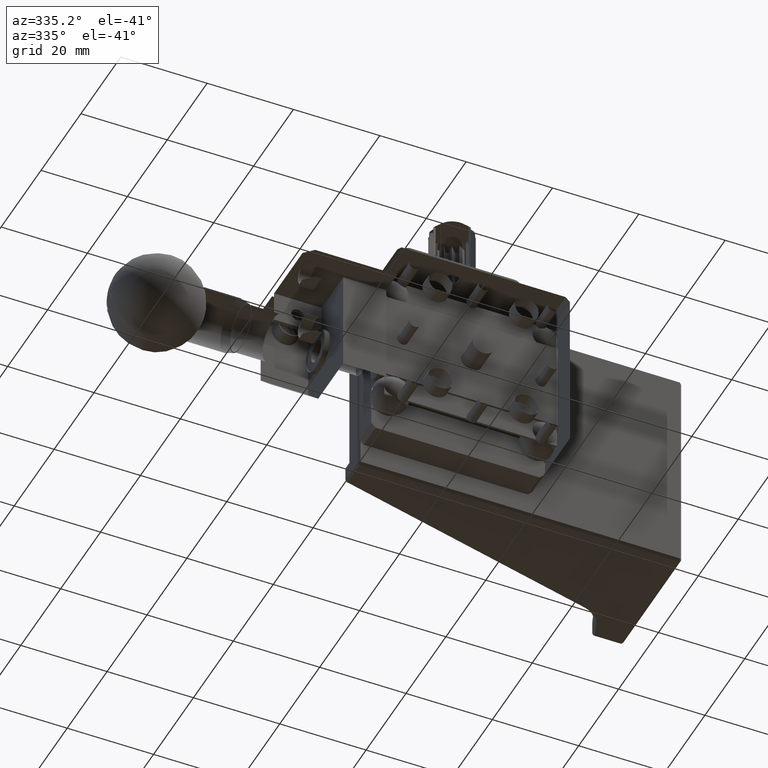
[diagram: clean part render]
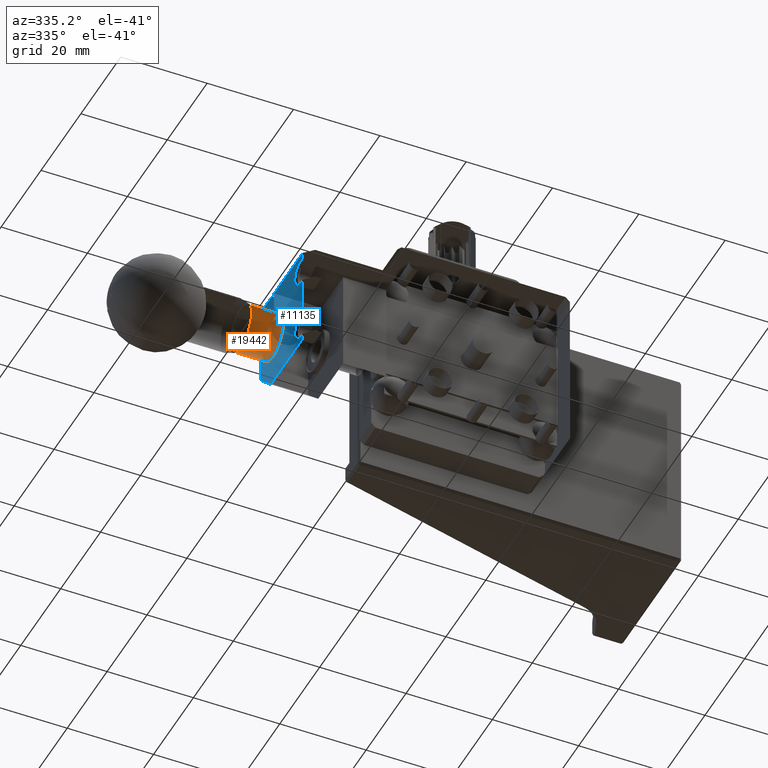
[diagram: same view with the hole feature highlighted: cylindrical wall and planar end face, labeled with their STEP entity ids]
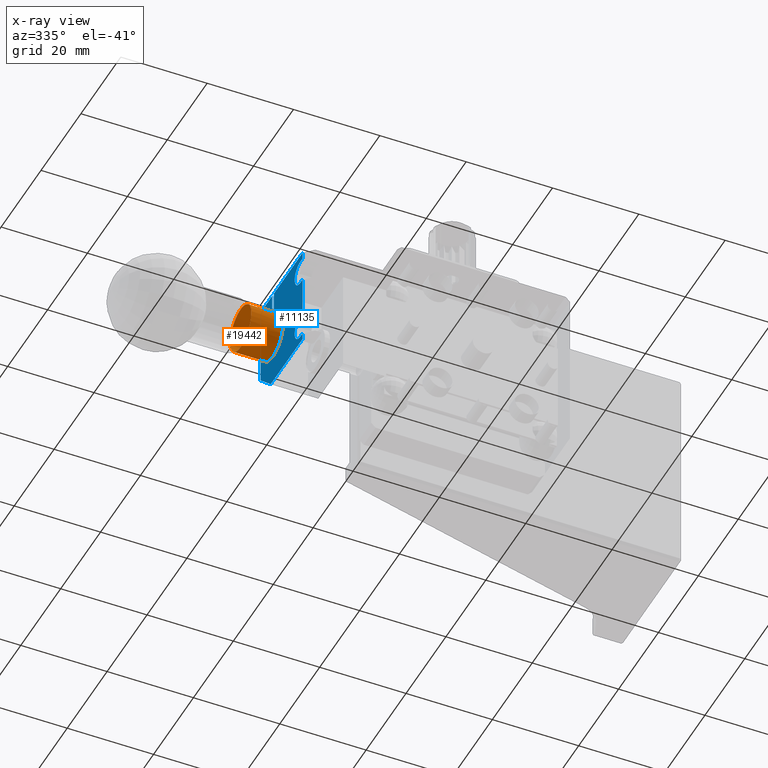
[diagram: x-ray of the same camera — body ghosted, the hole faces saturated]
A machine part, auxiliary view. The highlighted faces form one hole feature of diameter 10.5 mm: the cylindrical wall (entity #19442, orange) and its adjacent planar end face (entity #11135, blue) — they share a circular edge in the B-rep.
The next image is the same camera in x-ray (body ghosted, the hole faces saturated) — the bore reads through the body.
Wall:
#1465 = DIRECTION ( 'NONE',  ( -1.000000000000000000, 0.000000000000000000, -1.748160169567439944E-18 ) ) ;
#1973 = DIRECTION ( 'NONE',  ( -1.748160169567439944E-18, 0.000000000000000000, 1.000000000000000000 ) ) ;
#2182 = CYLINDRICAL_SURFACE ( 'NONE', #16732, 5.250000000000000000 ) ;
#5888 = DIRECTION ( 'NONE',  ( 0.000000000000000000, 0.000000000000000000, 1.000000000000000000 ) ) ;
#7212 = AXIS2_PLACEMENT_3D ( 'NONE', #24003, #1465, #1973 ) ;
#8514 = CARTESIAN_POINT ( 'NONE',  ( -7.500000000000000000, 16.80000000000000071, 5.250000000000000000 ) ) ;
#10477 = CARTESIAN_POINT ( 'NONE',  ( 0.000000000000000000, 16.80000000000000071, -3.852740219982900231E-17 ) ) ;
#10757 = ORIENTED_EDGE ( 'NONE', *, *, #22360, .T. ) ;
#13440 = VERTEX_POINT ( 'NONE', #38985 ) ;
#13813 = DIRECTION ( 'NONE',  ( 1.000000000000000000, -0.000000000000000000, 1.748160169567439944E-18 ) ) ;
#16732 = AXIS2_PLACEMENT_3D ( 'NONE', #32376, #47023, #5888 ) ;
#17485 = CIRCLE ( 'NONE', #21420, 5.250000000000000000 ) ;
#18898 = EDGE_LOOP ( 'NONE', ( #10757 ) ) ;
#19442 = ADVANCED_FACE ( 'NONE', ( #20284, #28673 ), #2182, .T. ) ;
#20284 = FACE_OUTER_BOUND ( 'NONE', #43620, .T. ) ;
#21420 = AXIS2_PLACEMENT_3D ( 'NONE', #10477, #29768, #37177 ) ;
#21787 = CARTESIAN_POINT ( 'NONE',  ( -4.568061607830639649E-18, 16.29999999999999716, 5.226136240091719287 ) ) ;
#22360 = EDGE_CURVE ( 'NONE', #24084, #24084, #41330, .T. ) ;
#24003 = CARTESIAN_POINT ( 'NONE',  ( 0.000000000000000000, 16.80000000000000071, -3.852740219982900231E-17 ) ) ;
#24084 = VERTEX_POINT ( 'NONE', #8514 ) ;
#28424 = EDGE_CURVE ( 'NONE', #39159, #13440, #17485, .T. ) ;
#28673 = FACE_OUTER_BOUND ( 'NONE', #18898, .T. ) ;
#29259 = ORIENTED_EDGE ( 'NONE', *, *, #39011, .T. ) ;
#29768 = DIRECTION ( 'NONE',  ( -1.000000000000000000, 0.000000000000000000, -1.748160169567439944E-18 ) ) ;
#30281 = AXIS2_PLACEMENT_3D ( 'NONE', #47723, #13813, #32825 ) ;
#32376 = CARTESIAN_POINT ( 'NONE',  ( -37.50000000000000000, 16.80000000000000071, -1.040834085586080066E-16 ) ) ;
#32825 = DIRECTION ( 'NONE',  ( 0.000000000000000000, 0.000000000000000000, 1.000000000000000000 ) ) ;
#37177 = DIRECTION ( 'NONE',  ( -1.748160169567439944E-18, 0.000000000000000000, 1.000000000000000000 ) ) ;
#38985 = CARTESIAN_POINT ( 'NONE',  ( -4.568061607830640419E-18, 17.30000000000000071, 5.226136240091719287 ) ) ;
#39011 = EDGE_CURVE ( 'NONE', #13440, #39159, #47575, .T. ) ;
#39159 = VERTEX_POINT ( 'NONE', #21787 ) ;
#41330 = CIRCLE ( 'NONE', #30281, 5.250000000000000000 ) ;
#43620 = EDGE_LOOP ( 'NONE', ( #29259, #44954 ) ) ;
#44954 = ORIENTED_EDGE ( 'NONE', *, *, #28424, .T. ) ;
#47023 = DIRECTION ( 'NONE',  ( -1.000000000000000000, 0.000000000000000000, -1.748160169567439944E-18 ) ) ;
#47575 = CIRCLE ( 'NONE', #7212, 5.250000000000000000 ) ;
#47723 = CARTESIAN_POINT ( 'NONE',  ( -7.500000000000000000, 16.80000000000000071, -5.163860347158480440E-17 ) ) ;
End face:
#371 = ORIENTED_EDGE ( 'NONE', *, *, #25726, .T. ) ;
#756 = CARTESIAN_POINT ( 'NONE',  ( 0.000000000000000000, 3.000000000000000000, 7.500000000000000000 ) ) ;
#1465 = DIRECTION ( 'NONE',  ( -1.000000000000000000, 0.000000000000000000, -1.748160169567439944E-18 ) ) ;
#1734 = CARTESIAN_POINT ( 'NONE',  ( 0.000000000000000000, 2.000000000000000000, -10.44999999999999929 ) ) ;
#1745 = ORIENTED_EDGE ( 'NONE', *, *, #34205, .F. ) ;
#1800 = EDGE_CURVE ( 'NONE', #34042, #16995, #46269, .T. ) ;
#1973 = DIRECTION ( 'NONE',  ( -1.748160169567439944E-18, 0.000000000000000000, 1.000000000000000000 ) ) ;
#2509 = LINE ( 'NONE', #43598, #10976 ) ;
#2514 = VECTOR ( 'NONE', #32441, 1000.000000000000000 ) ;
#2782 = CARTESIAN_POINT ( 'NONE',  ( 0.000000000000000000, 16.30000000000000071, 12.00000000000000000 ) ) ;
#3337 = VECTOR ( 'NONE', #23527, 999.9999999999998863 ) ;
#3441 = CARTESIAN_POINT ( 'NONE',  ( 0.000000000000000000, 3.000000000000000000, -4.549999999999999822 ) ) ;
#3640 = ORIENTED_EDGE ( 'NONE', *, *, #36541, .F. ) ;
#3826 = CARTESIAN_POINT ( 'NONE',  ( 0.000000000000000000, 17.30000000000000071, -9.469828350303079763E-16 ) ) ;
#4037 = LINE ( 'NONE', #37920, #16670 ) ;
#4455 = FACE_OUTER_BOUND ( 'NONE', #15978, .T. ) ;
#5244 = ORIENTED_EDGE ( 'NONE', *, *, #28809, .F. ) ;
#5480 = EDGE_CURVE ( 'NONE', #12854, #30931, #29712, .T. ) ;
#6245 = CARTESIAN_POINT ( 'NONE',  ( 0.000000000000000000, 3.000000000000000444, -10.45000000000000107 ) ) ;
#6564 = LINE ( 'NONE', #39988, #34592 ) ;
#7212 = AXIS2_PLACEMENT_3D ( 'NONE', #24003, #1465, #1973 ) ;
#7245 = CARTESIAN_POINT ( 'NONE',  ( 0.000000000000000000, 16.80000000000000071, -4.549999999999999822 ) ) ;
#8176 = CARTESIAN_POINT ( 'NONE',  ( 0.000000000000000000, 16.80000000000000071, -9.469828350303079763E-16 ) ) ;
#8423 = DIRECTION ( 'NONE',  ( 1.000000000000000000, 0.000000000000000000, 0.000000000000000000 ) ) ;
#8875 = ORIENTED_EDGE ( 'NONE', *, *, #11766, .T. ) ;
#8930 = ORIENTED_EDGE ( 'NONE', *, *, #19908, .F. ) ;
#8978 = CARTESIAN_POINT ( 'NONE',  ( 0.000000000000000000, 18.00000000000000355, -12.00000000000000000 ) ) ;
#9310 = VECTOR ( 'NONE', #43898, 1000.000000000000000 ) ;
#9751 = ORIENTED_EDGE ( 'NONE', *, *, #33397, .F. ) ;
#10019 = VECTOR ( 'NONE', #25838, 1000.000000000000000 ) ;
#10558 = DIRECTION ( 'NONE',  ( 0.000000000000000000, -1.000000000000000000, -0.000000000000000000 ) ) ;
#10758 = LINE ( 'NONE', #26563, #10019 ) ;
#10903 = CARTESIAN_POINT ( 'NONE',  ( 0.000000000000000000, 16.30000000000000071, 12.00000000000000000 ) ) ;
#10976 = VECTOR ( 'NONE', #13437, 1000.000000000000000 ) ;
#11037 = LINE ( 'NONE', #44470, #23163 ) ;
#11135 = ADVANCED_FACE ( 'NONE', ( #4455 ), #45830, .F. ) ;
#11589 = CARTESIAN_POINT ( 'NONE',  ( -4.336808689942017736E-16, 1.999999999999999556, 10.44999999999999929 ) ) ;
#11680 = DIRECTION ( 'NONE',  ( -1.000000000000000000, 0.000000000000000000, 0.000000000000000000 ) ) ;
#11760 = LINE ( 'NONE', #34267, #14154 ) ;
#11766 = EDGE_CURVE ( 'NONE', #38086, #17100, #10758, .T. ) ;
#12053 = AXIS2_PLACEMENT_3D ( 'NONE', #30353, #33811, #26400 ) ;
#12270 = VERTEX_POINT ( 'NONE', #3441 ) ;
#12854 = VERTEX_POINT ( 'NONE', #21386 ) ;
#12972 = VECTOR ( 'NONE', #45809, 1000.000000000000000 ) ;
#13437 = DIRECTION ( 'NONE',  ( 0.000000000000000000, -1.000000000000000000, -0.000000000000000000 ) ) ;
#13440 = VERTEX_POINT ( 'NONE', #38985 ) ;
#13667 = CARTESIAN_POINT ( 'NONE',  ( 0.000000000000000000, 2.000000000000000000, -9.469828350303079763E-16 ) ) ;
#13710 = VERTEX_POINT ( 'NONE', #42653 ) ;
#14154 = VECTOR ( 'NONE', #38693, 1000.000000000000000 ) ;
#14477 = LINE ( 'NONE', #7245, #48430 ) ;
#14516 = EDGE_CURVE ( 'NONE', #39159, #30931, #6564, .T. ) ;
#15978 = EDGE_LOOP ( 'NONE', ( #371, #25144, #33407, #47532, #8930, #26253, #45199, #35418, #9751, #3640, #44652, #5244, #33647, #45392, #8875, #1745, #29404, #38587 ) ) ;
#16670 = VECTOR ( 'NONE', #30266, 1000.000000000000000 ) ;
#16995 = VERTEX_POINT ( 'NONE', #38977 ) ;
#17100 = VERTEX_POINT ( 'NONE', #1734 ) ;
#17416 = LINE ( 'NONE', #20660, #9310 ) ;
#17586 = CARTESIAN_POINT ( 'NONE',  ( -6.505213034913026604E-16, 1.999999999999999112, 4.549999999999999822 ) ) ;
#17729 = DIRECTION ( 'NONE',  ( -0.000000000000000000, -0.000000000000000000, 1.000000000000000000 ) ) ;
#18340 = DIRECTION ( 'NONE',  ( -0.000000000000000000, -0.000000000000000000, 1.000000000000000000 ) ) ;
#18411 = DIRECTION ( 'NONE',  ( -0.000000000000000000, 1.000000000000000000, 0.000000000000000000 ) ) ;
#19545 = VERTEX_POINT ( 'NONE', #40524 ) ;
#19908 = EDGE_CURVE ( 'NONE', #12854, #40634, #36639, .T. ) ;
#20087 = CARTESIAN_POINT ( 'NONE',  ( -6.938893903907228378E-15, 23.00000000000000000, 11.00000000000000000 ) ) ;
#20660 = CARTESIAN_POINT ( 'NONE',  ( 0.000000000000000000, 16.80000000000000071, 4.549999999999999822 ) ) ;
#21386 = CARTESIAN_POINT ( 'NONE',  ( 0.000000000000000000, 2.000000000000000000, 12.00000000000000000 ) ) ;
#21515 = EDGE_CURVE ( 'NONE', #39481, #38086, #11037, .T. ) ;
#21787 = CARTESIAN_POINT ( 'NONE',  ( -4.568061607830639649E-18, 16.29999999999999716, 5.226136240091719287 ) ) ;
#21991 = DIRECTION ( 'NONE',  ( 0.000000000000000000, 0.7071067811865474617, -0.7071067811865474617 ) ) ;
#22291 = DIRECTION ( 'NONE',  ( 0.000000000000000000, 1.000000000000000000, 0.000000000000000000 ) ) ;
#22293 = CARTESIAN_POINT ( 'NONE',  ( 0.000000000000000000, 23.00000000000000000, -9.469828350303079763E-16 ) ) ;
#23163 = VECTOR ( 'NONE', #10558, 1000.000000000000000 ) ;
#23527 = DIRECTION ( 'NONE',  ( 0.000000000000000000, 0.7071067811865473507, 0.7071067811865477948 ) ) ;
#23698 = CARTESIAN_POINT ( 'NONE',  ( -3.252606517456513302E-16, 1.999999999999999556, -12.00000000000000000 ) ) ;
#24003 = CARTESIAN_POINT ( 'NONE',  ( 0.000000000000000000, 16.80000000000000071, -3.852740219982900231E-17 ) ) ;
#24897 = AXIS2_PLACEMENT_3D ( 'NONE', #756, #11680, #27755 ) ;
#25144 = ORIENTED_EDGE ( 'NONE', *, *, #32707, .F. ) ;
#25187 = VERTEX_POINT ( 'NONE', #38154 ) ;
#25726 = EDGE_CURVE ( 'NONE', #19545, #48546, #38088, .T. ) ;
#25838 = DIRECTION ( 'NONE',  ( 0.000000000000000000, -0.000000000000000000, 1.000000000000000000 ) ) ;
#25863 = DIRECTION ( 'NONE',  ( 0.000000000000000000, 0.000000000000000000, -1.000000000000000000 ) ) ;
#26253 = ORIENTED_EDGE ( 'NONE', *, *, #5480, .T. ) ;
#26400 = DIRECTION ( 'NONE',  ( 0.000000000000000000, 0.000000000000000000, 1.000000000000000000 ) ) ;
#26563 = CARTESIAN_POINT ( 'NONE',  ( -1.301042606982605321E-15, 1.999999999999998668, 12.00000000000000000 ) ) ;
#27755 = DIRECTION ( 'NONE',  ( 0.000000000000000000, 0.000000000000000000, 1.000000000000000000 ) ) ;
#28809 = EDGE_CURVE ( 'NONE', #25187, #45850, #32695, .T. ) ;
#29404 = ORIENTED_EDGE ( 'NONE', *, *, #40229, .F. ) ;
#29406 = LINE ( 'NONE', #45246, #38966 ) ;
#29411 = VERTEX_POINT ( 'NONE', #31601 ) ;
#29712 = LINE ( 'NONE', #10903, #44522 ) ;
#30266 = DIRECTION ( 'NONE',  ( -0.000000000000000000, 1.000000000000000000, 0.000000000000000000 ) ) ;
#30353 = CARTESIAN_POINT ( 'NONE',  ( 0.000000000000000000, 3.000000000000000000, -7.500000000000000000 ) ) ;
#30453 = DIRECTION ( 'NONE',  ( 0.000000000000000000, 0.000000000000000000, -1.000000000000000000 ) ) ;
#30675 = CARTESIAN_POINT ( 'NONE',  ( -1.301042606982605321E-15, 1.999999999999998668, 12.00000000000000000 ) ) ;
#30781 = AXIS2_PLACEMENT_3D ( 'NONE', #8176, #8423, #30453 ) ;
#30931 = VERTEX_POINT ( 'NONE', #2782 ) ;
#31601 = CARTESIAN_POINT ( 'NONE',  ( 0.000000000000000000, 17.30000000000000071, 12.00000000000000178 ) ) ;
#32441 = DIRECTION ( 'NONE',  ( 0.000000000000000000, 0.000000000000000000, -1.000000000000000000 ) ) ;
#32695 = LINE ( 'NONE', #22293, #45947 ) ;
#32707 = EDGE_CURVE ( 'NONE', #16995, #48546, #17416, .T. ) ;
#33397 = EDGE_CURVE ( 'NONE', #29411, #13440, #41188, .T. ) ;
#33407 = ORIENTED_EDGE ( 'NONE', *, *, #1800, .F. ) ;
#33638 = VERTEX_POINT ( 'NONE', #6245 ) ;
#33647 = ORIENTED_EDGE ( 'NONE', *, *, #42444, .F. ) ;
#33811 = DIRECTION ( 'NONE',  ( -1.000000000000000000, 0.000000000000000000, 0.000000000000000000 ) ) ;
#34042 = VERTEX_POINT ( 'NONE', #42783 ) ;
#34205 = EDGE_CURVE ( 'NONE', #33638, #17100, #11760, .T. ) ;
#34267 = CARTESIAN_POINT ( 'NONE',  ( 0.000000000000000000, 16.80000000000000071, -10.44999999999999929 ) ) ;
#34592 = VECTOR ( 'NONE', #17729, 1000.000000000000000 ) ;
#34650 = LINE ( 'NONE', #38595, #3337 ) ;
#35418 = ORIENTED_EDGE ( 'NONE', *, *, #39011, .F. ) ;
#36541 = EDGE_CURVE ( 'NONE', #13710, #29411, #2509, .T. ) ;
#36639 = LINE ( 'NONE', #13667, #2514 ) ;
#37760 = EDGE_CURVE ( 'NONE', #40634, #34042, #4037, .T. ) ;
#37920 = CARTESIAN_POINT ( 'NONE',  ( 0.000000000000000000, 16.80000000000000071, 10.44999999999999929 ) ) ;
#38086 = VERTEX_POINT ( 'NONE', #23698 ) ;
#38088 = LINE ( 'NONE', #30675, #12972 ) ;
#38154 = CARTESIAN_POINT ( 'NONE',  ( 0.000000000000000000, 23.00000000000000000, -6.999999999999999112 ) ) ;
#38587 = ORIENTED_EDGE ( 'NONE', *, *, #40236, .F. ) ;
#38595 = CARTESIAN_POINT ( 'NONE',  ( 0.000000000000000000, 18.00000000000000355, -12.00000000000000000 ) ) ;
#38693 = DIRECTION ( 'NONE',  ( 0.000000000000000000, -1.000000000000000000, -0.000000000000000000 ) ) ;
#38860 = CIRCLE ( 'NONE', #12053, 2.950000000000000178 ) ;
#38966 = VECTOR ( 'NONE', #21991, 1000.000000000000114 ) ;
#38977 = CARTESIAN_POINT ( 'NONE',  ( 0.000000000000000000, 3.000000000000000888, 4.549999999999999822 ) ) ;
#38985 = CARTESIAN_POINT ( 'NONE',  ( -4.568061607830640419E-18, 17.30000000000000071, 5.226136240091719287 ) ) ;
#39011 = EDGE_CURVE ( 'NONE', #13440, #39159, #47575, .T. ) ;
#39159 = VERTEX_POINT ( 'NONE', #21787 ) ;
#39481 = VERTEX_POINT ( 'NONE', #8978 ) ;
#39988 = CARTESIAN_POINT ( 'NONE',  ( 0.000000000000000000, 16.30000000000000071, -9.469828350303079763E-16 ) ) ;
#40229 = EDGE_CURVE ( 'NONE', #12270, #33638, #38860, .T. ) ;
#40236 = EDGE_CURVE ( 'NONE', #19545, #12270, #14477, .T. ) ;
#40524 = CARTESIAN_POINT ( 'NONE',  ( 0.000000000000000000, 2.000000000000000000, -4.549999999999999822 ) ) ;
#40634 = VERTEX_POINT ( 'NONE', #11589 ) ;
#41188 = LINE ( 'NONE', #3826, #42512 ) ;
#42444 = EDGE_CURVE ( 'NONE', #39481, #25187, #34650, .T. ) ;
#42512 = VECTOR ( 'NONE', #25863, 1000.000000000000000 ) ;
#42653 = CARTESIAN_POINT ( 'NONE',  ( -2.312964634635742661E-15, 22.00000000000000355, 12.00000000000000178 ) ) ;
#42783 = CARTESIAN_POINT ( 'NONE',  ( 0.000000000000000000, 3.000000000000000000, 10.45000000000000107 ) ) ;
#43598 = CARTESIAN_POINT ( 'NONE',  ( 0.000000000000000000, 16.80000000000000071, 12.00000000000000000 ) ) ;
#43898 = DIRECTION ( 'NONE',  ( 0.000000000000000000, -1.000000000000000000, -0.000000000000000000 ) ) ;
#44239 = EDGE_CURVE ( 'NONE', #13710, #45850, #29406, .T. ) ;
#44470 = CARTESIAN_POINT ( 'NONE',  ( 0.000000000000000000, 0.000000000000000000, -12.00000000000000000 ) ) ;
#44522 = VECTOR ( 'NONE', #22291, 1000.000000000000000 ) ;
#44652 = ORIENTED_EDGE ( 'NONE', *, *, #44239, .T. ) ;
#45199 = ORIENTED_EDGE ( 'NONE', *, *, #14516, .F. ) ;
#45246 = CARTESIAN_POINT ( 'NONE',  ( -6.938893903907228378E-15, 23.00000000000000000, 11.00000000000000000 ) ) ;
#45392 = ORIENTED_EDGE ( 'NONE', *, *, #21515, .T. ) ;
#45809 = DIRECTION ( 'NONE',  ( 0.000000000000000000, -0.000000000000000000, 1.000000000000000000 ) ) ;
#45830 = PLANE ( 'NONE',  #30781 ) ;
#45850 = VERTEX_POINT ( 'NONE', #20087 ) ;
#45947 = VECTOR ( 'NONE', #18340, 1000.000000000000000 ) ;
#46269 = CIRCLE ( 'NONE', #24897, 2.950000000000001066 ) ;
#47532 = ORIENTED_EDGE ( 'NONE', *, *, #37760, .F. ) ;
#47575 = CIRCLE ( 'NONE', #7212, 5.250000000000000000 ) ;
#48430 = VECTOR ( 'NONE', #18411, 1000.000000000000000 ) ;
#48546 = VERTEX_POINT ( 'NONE', #17586 ) ;